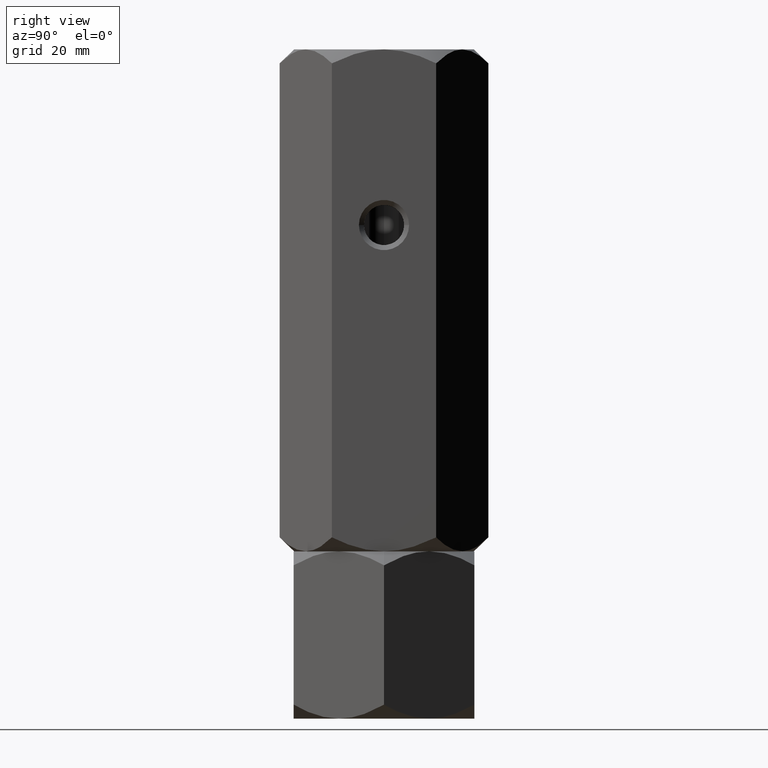
[diagram: clean part render]
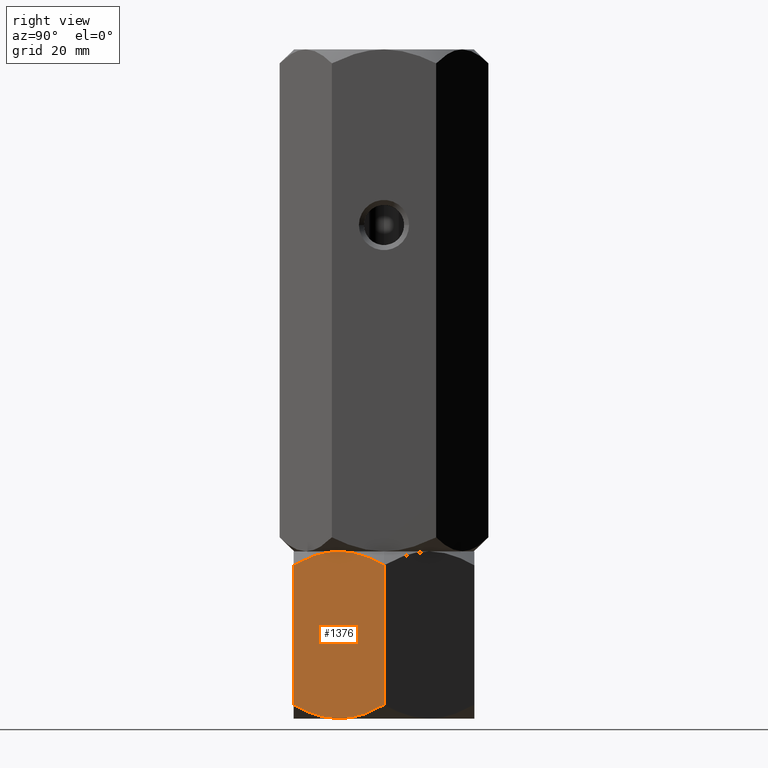
[diagram: same view with one face highlighted and labeled with its STEP entity id]
A machine part, right view. The second image highlights one B-rep face of the part: STEP entity #1376.
In plain terms, the highlighted planar face has unit normal (-0.866, 0.5, 0).
Its self-contained STEP definition (entity closure, byte-faithful):
#12 = AXIS2_PLACEMENT_3D ( 'NONE', #1080, #154, #454 ) ;
#35 = EDGE_LOOP ( 'NONE', ( #1617, #777, #1347, #1537, #1496, #614 ) ) ;
#90 = CARTESIAN_POINT ( 'NONE',  ( 16.04483044561308702, -8.209538469370128766, 0.01733285647409073954 ) ) ;
#98 = CARTESIAN_POINT ( 'NONE',  ( 15.81600583360881807, -8.605874323383773117, 8.300922883092144309E-16 ) ) ;
#130 = CARTESIAN_POINT ( 'NONE',  ( 11.20713682960488100, -16.58866960374795241, 31.36355562669839614 ) ) ;
#154 = DIRECTION ( 'NONE',  ( -0.8660254037844385966, 0.5000000000000001110, 0.000000000000000000 ) ) ;
#161 = EDGE_CURVE ( 'NONE', #1868, #583, #1976, .T. ) ;
#165 = PLANE ( 'NONE',  #12 ) ;
#181 = CARTESIAN_POINT ( 'NONE',  ( 15.58845726811989429, -9.000000000000001776, 33.33333333333330017 ) ) ;
#253 = CARTESIAN_POINT ( 'NONE',  ( 20.78460969082652809, 0.000000000000000000, 33.33333333333330017 ) ) ;
#268 = CARTESIAN_POINT ( 'NONE',  ( 16.72971695024924799, -7.023280245922048692, 0.1387225990985750668 ) ) ;
#280 = FACE_OUTER_BOUND ( 'NONE', #35, .T. ) ;
#321 = CARTESIAN_POINT ( 'NONE',  ( 13.77442836864821629, -12.14199022028320130, 32.99277023107802620 ) ) ;
#413 = EDGE_CURVE ( 'NONE', #1118, #1868, #1166, .T. ) ;
#446 = CARTESIAN_POINT ( 'NONE',  ( 15.58845726811989429, -9.000000000000001776, 0.000000000000000000 ) ) ;
#454 = DIRECTION ( 'NONE',  ( -0.5000000000000001110, -0.8660254037844385966, 0.000000000000000000 ) ) ;
#559 = B_SPLINE_CURVE_WITH_KNOTS ( 'NONE', 3,
 ( #1239, #1880, #1702, #885, #1527, #268, #1866, #90, #98, #446 ),
 .UNSPECIFIED., .F., .F.,
 ( 4, 2, 2, 2, 4 ),
 ( 2.544307986819122044E-07, 0.005386537354063078605, 0.008079678815695276808, 0.009426249546511375477, 0.01077282027732747414 ),
 .UNSPECIFIED. ) ;
#583 = VERTEX_POINT ( 'NONE', #1140 ) ;
#609 = B_SPLINE_CURVE_WITH_KNOTS ( 'NONE', 3,
 ( #915, #1524, #720, #1844, #1567, #1235 ),
 .UNSPECIFIED., .F., .F.,
 ( 4, 2, 4 ),
 ( 0.01077282027732747414, 0.01612137750481873813, 0.02146993473231000038 ),
 .UNSPECIFIED. ) ;
#614 = ORIENTED_EDGE ( 'NONE', *, *, #413, .F. ) ;
#617 = CARTESIAN_POINT ( 'NONE',  ( 20.78460969082652809, 2.339913672068599110E-16, 30.54872364250677919 ) ) ;
#698 = EDGE_CURVE ( 'NONE', #583, #1233, #559, .T. ) ;
#720 = CARTESIAN_POINT ( 'NONE',  ( 13.79618737047370125, -12.10430252359947900, 0.2763959071215842944 ) ) ;
#725 = CARTESIAN_POINT ( 'NONE',  ( 20.78460969082652809, 2.339913672068599110E-16, 30.54872364250677919 ) ) ;
#761 = CARTESIAN_POINT ( 'NONE',  ( 16.49227650070744389, -7.434539168300460688, 33.33333333333330017 ) ) ;
#777 = ORIENTED_EDGE ( 'NONE', *, *, #1748, .T. ) ;
#866 = VECTOR ( 'NONE', #894, 1000.000000000000000 ) ;
#885 = CARTESIAN_POINT ( 'NONE',  ( 17.84166640377631907, -5.097327296964724752, 0.5370855558290092979 ) ) ;
#894 = DIRECTION ( 'NONE',  ( -0.000000000000000000, -0.000000000000000000, -1.000000000000000000 ) ) ;
#915 = CARTESIAN_POINT ( 'NONE',  ( 15.58845726811989429, -9.000000000000001776, 0.000000000000000000 ) ) ;
#916 = CARTESIAN_POINT ( 'NONE',  ( 15.13208409062669446, -9.790461530629873010, 33.31600047685921595 ) ) ;
#926 = CARTESIAN_POINT ( 'NONE',  ( 14.67378923359658138, -10.58425150785354418, 33.24638644321514391 ) ) ;
#931 = B_SPLINE_CURVE_WITH_KNOTS ( 'NONE', 3,
 ( #949, #130, #1093, #2044, #321, #1754, #926, #916, #1729, #1889 ),
 .UNSPECIFIED., .F., .F.,
 ( 4, 2, 2, 2, 4 ),
 ( 2.544307986796311447E-07, 0.005386537354063074268, 0.008079678815695273339, 0.009426249546511370273, 0.01077282027732746721 ),
 .UNSPECIFIED. ) ;
#949 = CARTESIAN_POINT ( 'NONE',  ( 10.39230484541326227, -18.00000000000000000, 30.54872364250678274 ) ) ;
#955 = EDGE_CURVE ( 'NONE', #1233, #1827, #609, .T. ) ;
#1014 = CARTESIAN_POINT ( 'NONE',  ( 15.58845726811989429, -9.000000000000001776, 0.000000000000000000 ) ) ;
#1080 = CARTESIAN_POINT ( 'NONE',  ( 10.39230484541326227, -18.00000000000000000, 33.33333333333330017 ) ) ;
#1088 = CARTESIAN_POINT ( 'NONE',  ( 10.39230484541326227, -18.00000000000000000, 30.54872364250678274 ) ) ;
#1093 = CARTESIAN_POINT ( 'NONE',  ( 12.04041001437222214, -15.14539811114618928, 32.05595025544342747 ) ) ;
#1118 = VERTEX_POINT ( 'NONE', #181 ) ;
#1140 = CARTESIAN_POINT ( 'NONE',  ( 20.78460969082652809, -4.404509159444062513E-16, 2.784609690826518769 ) ) ;
#1166 = B_SPLINE_CURVE_WITH_KNOTS ( 'NONE', 3,
 ( #1716, #761, #1424, #2018, #2041, #617 ),
 .UNSPECIFIED., .F., .F.,
 ( 4, 2, 4 ),
 ( 0.01077282027732746721, 0.01612137750481873466, 0.02146993473231000038 ),
 .UNSPECIFIED. ) ;
#1233 = VERTEX_POINT ( 'NONE', #1014 ) ;
#1235 = CARTESIAN_POINT ( 'NONE',  ( 10.39230484541326227, -18.00000000000000000, 2.784609690826516104 ) ) ;
#1239 = CARTESIAN_POINT ( 'NONE',  ( 20.78460969082652809, -4.404509159444062513E-16, 2.784609690826518769 ) ) ;
#1325 = EDGE_CURVE ( 'NONE', #1714, #1118, #931, .T. ) ;
#1347 = ORIENTED_EDGE ( 'NONE', *, *, #955, .F. ) ;
#1376 = ADVANCED_FACE ( 'NONE', ( #280 ), #165, .F. ) ;
#1418 = VECTOR ( 'NONE', #2017, 1000.000000000000000 ) ;
#1424 = CARTESIAN_POINT ( 'NONE',  ( 17.38072716576608912, -5.895697476400520110, 33.05693742621171083 ) ) ;
#1496 = ORIENTED_EDGE ( 'NONE', *, *, #161, .F. ) ;
#1524 = CARTESIAN_POINT ( 'NONE',  ( 14.68463803553234825, -10.56546083169953754, 1.128247885742727657E-15 ) ) ;
#1527 = CARTESIAN_POINT ( 'NONE',  ( 17.40248616759156874, -5.858009779716798704, 0.3405631022552671472 ) ) ;
#1537 = ORIENTED_EDGE ( 'NONE', *, *, #698, .F. ) ;
#1567 = CARTESIAN_POINT ( 'NONE',  ( 11.20619321075668395, -16.59030399953601531, 1.970721325483048458 ) ) ;
#1617 = ORIENTED_EDGE ( 'NONE', *, *, #1325, .F. ) ;
#1702 = CARTESIAN_POINT ( 'NONE',  ( 19.13650452186756112, -2.854601888853813385, 1.277383077889869600 ) ) ;
#1714 = VERTEX_POINT ( 'NONE', #1088 ) ;
#1716 = CARTESIAN_POINT ( 'NONE',  ( 15.58845726811989429, -9.000000000000001776, 33.33333333333330017 ) ) ;
#1729 = CARTESIAN_POINT ( 'NONE',  ( 15.36090870263097230, -9.394125676616233989, 33.33333333333330728 ) ) ;
#1748 = EDGE_CURVE ( 'NONE', #1714, #1827, #2028, .T. ) ;
#1754 = CARTESIAN_POINT ( 'NONE',  ( 14.44719758599053705, -10.97671975407795131, 33.19461073423471476 ) ) ;
#1827 = VERTEX_POINT ( 'NONE', #1884 ) ;
#1844 = CARTESIAN_POINT ( 'NONE',  ( 12.04393988858690356, -15.13928418966203182, 1.272574701504241235 ) ) ;
#1866 = CARTESIAN_POINT ( 'NONE',  ( 16.50312530264320543, -7.415748492146457593, 0.08694689011815548429 ) ) ;
#1868 = VERTEX_POINT ( 'NONE', #725 ) ;
#1870 = CARTESIAN_POINT ( 'NONE',  ( 10.39230484541326227, -18.00000000000000000, 33.33333333333330017 ) ) ;
#1880 = CARTESIAN_POINT ( 'NONE',  ( 19.96977770663490048, -1.411330396252048702, 1.969777706634900483 ) ) ;
#1884 = CARTESIAN_POINT ( 'NONE',  ( 10.39230484541326227, -18.00000000000000000, 2.784609690826516104 ) ) ;
#1889 = CARTESIAN_POINT ( 'NONE',  ( 15.58845726811989429, -9.000000000000001776, 33.33333333333330017 ) ) ;
#1976 = LINE ( 'NONE', #253, #866 ) ;
#2017 = DIRECTION ( 'NONE',  ( -0.000000000000000000, -0.000000000000000000, -1.000000000000000000 ) ) ;
#2018 = CARTESIAN_POINT ( 'NONE',  ( 19.13297464765288325, -2.860715810337963738, 32.06075863182904584 ) ) ;
#2028 = LINE ( 'NONE', #1870, #1418 ) ;
#2041 = CARTESIAN_POINT ( 'NONE',  ( 19.97072132548310108, -1.409696000463987353, 31.36261200785025238 ) ) ;
#2044 = CARTESIAN_POINT ( 'NONE',  ( 13.33524813246346952, -12.90267270303527525, 32.79624777750428422 ) ) ;